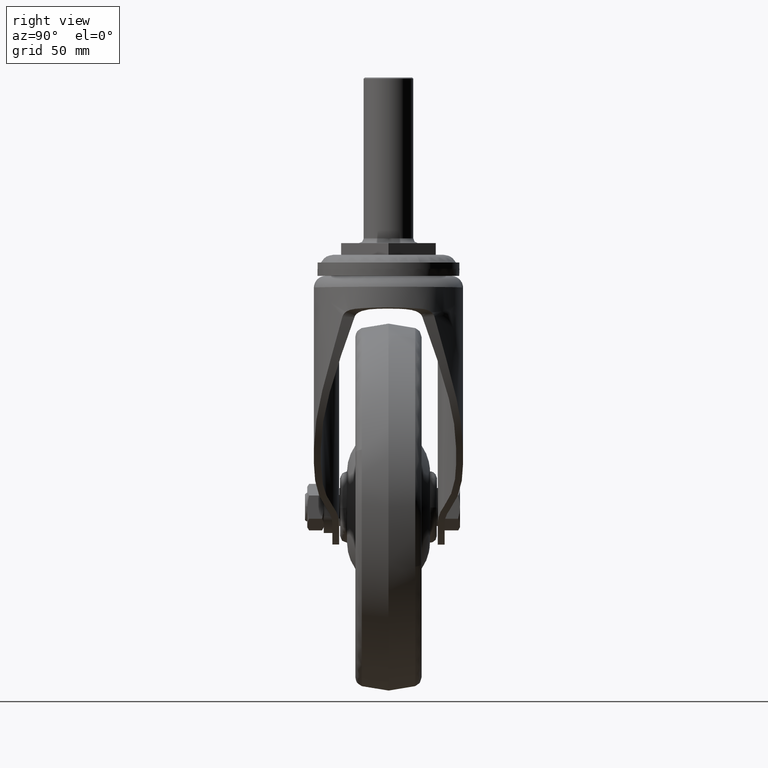
[diagram: clean part render]
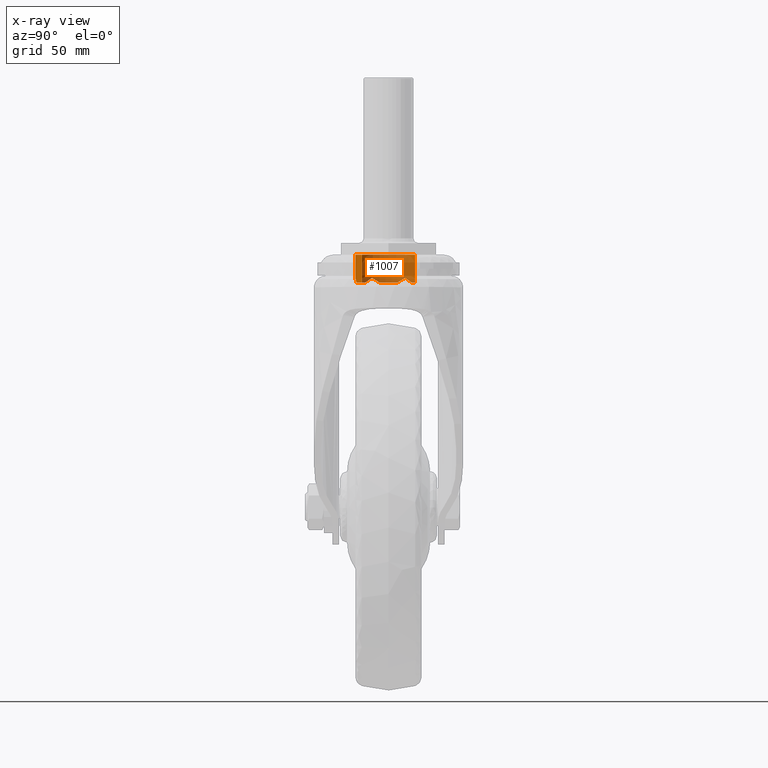
[diagram: x-ray — body ghosted, one internal face saturated and labeled with its STEP entity id]
A machine part, right view, then the same camera in x-ray: the body is ghosted and one INTERNAL B-rep face — a face not visible from any outside direction — is saturated and labeled: STEP entity #1007.
In plain terms, the highlighted face is a freeform B-spline surface patch.
Its self-contained STEP definition (entity closure, byte-faithful):
#334=CARTESIAN_POINT('',(-10.015349823234240,9.781807196112590,-11.800000000000161));
#335=VERTEX_POINT('',#334);
#347=CARTESIAN_POINT('',(-12.124318285586581,6.999420705564249,-9.800000000000148));
#348=VERTEX_POINT('',#347);
#354=CARTESIAN_POINT('',(-10.015349823234240,9.781807196112590,-11.800000000000161));
#355=CARTESIAN_POINT('',(-11.244671239966648,8.523135479416514,-10.815789616216570));
#356=CARTESIAN_POINT('',(-12.124318285586581,6.999420705564249,-9.800000000000148));
#364=(BOUNDED_CURVE()B_SPLINE_CURVE(2,(#354,#355,#356),.UNSPECIFIED.,.F.,.U.)CURVE()GEOMETRIC_REPRESENTATION_ITEM()QUASI_UNIFORM_CURVE()RATIONAL_B_SPLINE_CURVE((1.0,0.992195319500428,1.0))REPRESENTATION_ITEM(''));
#365=EDGE_CURVE('',#335,#348,#364,.T.);
#383=CARTESIAN_POINT('',(-13.479237789742999,3.781683846019150,-11.800000000000161));
#384=VERTEX_POINT('',#383);
#390=CARTESIAN_POINT('',(-12.124318285586581,6.999420705564249,-9.800000000000148));
#391=CARTESIAN_POINT('',(-13.003973201035539,5.475692299680845,-10.815798704056071));
#392=CARTESIAN_POINT('',(-13.479237789742999,3.781683846019170,-11.800000000000191));
#400=(BOUNDED_CURVE()B_SPLINE_CURVE(2,(#390,#391,#392),.UNSPECIFIED.,.F.,.U.)CURVE()GEOMETRIC_REPRESENTATION_ITEM()QUASI_UNIFORM_CURVE()RATIONAL_B_SPLINE_CURVE((1.0,0.992195181311014,1.0))REPRESENTATION_ITEM(''));
#401=EDGE_CURVE('',#348,#384,#400,.T.);
#411=CARTESIAN_POINT('',(-13.479237789742999,-3.781683846019170,-11.800000000000161));
#412=VERTEX_POINT('',#411);
#413=CARTESIAN_POINT('',(-13.479237789742990,-3.781683846019168,-11.800000000000161));
#414=CARTESIAN_POINT('',(-14.540212670839361,-1.581374E-014,-11.800000000000161));
#415=CARTESIAN_POINT('',(-13.479237789743010,3.781683846019147,-11.800000000000161));
#423=(BOUNDED_CURVE()B_SPLINE_CURVE(2,(#413,#414,#415),.UNSPECIFIED.,.F.,.U.)CURVE()GEOMETRIC_REPRESENTATION_ITEM()QUASI_UNIFORM_CURVE()RATIONAL_B_SPLINE_CURVE((1.0,0.962824844238789,1.0))REPRESENTATION_ITEM(''));
#424=EDGE_CURVE('',#412,#384,#423,.T.);
#442=CARTESIAN_POINT('',(-12.124318285586121,-6.999420705563920,-9.800000000000148));
#443=VERTEX_POINT('',#442);
#449=CARTESIAN_POINT('',(-13.479237789742999,-3.781683846019170,-11.800000000000161));
#450=CARTESIAN_POINT('',(-13.003973202495283,-5.475692293245288,-10.815798707695214));
#451=CARTESIAN_POINT('',(-12.124318285586121,-6.999420705563920,-9.800000000000148));
#459=(BOUNDED_CURVE()B_SPLINE_CURVE(2,(#449,#450,#451),.UNSPECIFIED.,.F.,.U.)CURVE()GEOMETRIC_REPRESENTATION_ITEM()QUASI_UNIFORM_CURVE()RATIONAL_B_SPLINE_CURVE((1.0,0.992195181380222,1.0))REPRESENTATION_ITEM(''));
#460=EDGE_CURVE('',#412,#443,#459,.T.);
#479=CARTESIAN_POINT('',(-10.015349823234160,-9.781807196112629,-11.800000000000161));
#480=VERTEX_POINT('',#479);
#486=CARTESIAN_POINT('',(-12.124318285586121,-6.999420705563920,-9.800000000000148));
#487=CARTESIAN_POINT('',(-11.244671242252489,-8.523135479340697,-10.815789615518794));
#488=CARTESIAN_POINT('',(-10.015349823234169,-9.781807196112622,-11.800000000000150));
#496=(BOUNDED_CURVE()B_SPLINE_CURVE(2,(#486,#487,#488),.UNSPECIFIED.,.F.,.U.)CURVE()GEOMETRIC_REPRESENTATION_ITEM()QUASI_UNIFORM_CURVE()RATIONAL_B_SPLINE_CURVE((1.0,0.992195319431596,1.0))REPRESENTATION_ITEM(''));
#497=EDGE_CURVE('',#443,#480,#496,.T.);
#507=CARTESIAN_POINT('',(-3.464101615137745,-13.564327631831860,-11.800000000000161));
#508=VERTEX_POINT('',#507);
#509=CARTESIAN_POINT('',(-3.464101615137741,-13.564327631831860,-11.800000000000161));
#510=CARTESIAN_POINT('',(-7.270439484209970,-12.592252825184595,-11.800000000000155));
#511=CARTESIAN_POINT('',(-10.015349823234160,-9.781807196112631,-11.800000000000161));
#519=(BOUNDED_CURVE()B_SPLINE_CURVE(2,(#509,#510,#511),.UNSPECIFIED.,.F.,.U.)CURVE()GEOMETRIC_REPRESENTATION_ITEM()QUASI_UNIFORM_CURVE()RATIONAL_B_SPLINE_CURVE((1.0,0.962810414805098,1.0))REPRESENTATION_ITEM(''));
#520=EDGE_CURVE('',#508,#480,#519,.T.);
#537=CARTESIAN_POINT('',(0.0,-13.999677999999561,-9.800000000000148));
#538=VERTEX_POINT('',#537);
#544=CARTESIAN_POINT('',(0.0,-13.999677999999561,-9.800000000000148));
#545=CARTESIAN_POINT('',(-1.759407112293093,-13.999678291942240,-10.815794169896717));
#546=CARTESIAN_POINT('',(-3.464101615137745,-13.564327631831860,-11.800000000000161));
#554=(BOUNDED_CURVE()B_SPLINE_CURVE(2,(#544,#545,#546),.UNSPECIFIED.,.F.,.U.)CURVE()GEOMETRIC_REPRESENTATION_ITEM()QUASI_UNIFORM_CURVE()RATIONAL_B_SPLINE_CURVE((1.0,0.992195240070578,1.0))REPRESENTATION_ITEM(''));
#555=EDGE_CURVE('',#538,#508,#554,.T.);
#574=CARTESIAN_POINT('',(3.464101615137760,-13.564327631831841,-11.800000000000161));
#575=VERTEX_POINT('',#574);
#581=CARTESIAN_POINT('',(3.464101615137760,-13.564327631831841,-11.800000000000161));
#582=CARTESIAN_POINT('',(1.759407084668356,-13.999677708057275,-10.815794153947566));
#583=CARTESIAN_POINT('',(0.0,-13.999677999999561,-9.800000000000148));
#591=(BOUNDED_CURVE()B_SPLINE_CURVE(2,(#581,#582,#583),.UNSPECIFIED.,.F.,.U.)CURVE()GEOMETRIC_REPRESENTATION_ITEM()QUASI_UNIFORM_CURVE()RATIONAL_B_SPLINE_CURVE((1.0,0.992195260761326,1.0))REPRESENTATION_ITEM(''));
#592=EDGE_CURVE('',#575,#538,#591,.T.);
#611=CARTESIAN_POINT('',(8.327327481580312,-11.253737206732460,-11.800000000000161));
#612=VERTEX_POINT('',#611);
#626=CARTESIAN_POINT('',(8.327327481580316,-11.253737206732458,-11.800000000000164));
#627=CARTESIAN_POINT('',(6.122100513485481,-12.885519324725427,-11.800000000000157));
#628=CARTESIAN_POINT('',(3.464101615137770,-13.564327631831850,-11.800000000000161));
#636=(BOUNDED_CURVE()B_SPLINE_CURVE(2,(#626,#627,#628),.UNSPECIFIED.,.F.,.U.)B_SPLINE_CURVE_WITH_KNOTS((3,3),(0.293675445178427,1.0),.UNSPECIFIED.)CURVE()GEOMETRIC_REPRESENTATION_ITEM()RATIONAL_B_SPLINE_CURVE((0.984575506361340,0.973738877574036,1.0))REPRESENTATION_ITEM(''));
#637=EDGE_CURVE('',#612,#575,#636,.T.);
#902=CARTESIAN_POINT('',(-8.327327481580333,11.253737206732501,-11.800000000000161));
#903=VERTEX_POINT('',#902);
#904=CARTESIAN_POINT('',(-10.015349823234249,9.781807196112597,-11.800000000000161));
#905=CARTESIAN_POINT('',(-9.230397041762339,10.585500884154843,-11.800000000000157));
#906=CARTESIAN_POINT('',(-8.327327481580335,11.253737206732499,-11.800000000000162));
#914=(BOUNDED_CURVE()B_SPLINE_CURVE(2,(#904,#905,#906),.UNSPECIFIED.,.F.,.U.)B_SPLINE_CURVE_WITH_KNOTS((3,3),(0.0,0.293767518354549),.UNSPECIFIED.)CURVE()GEOMETRIC_REPRESENTATION_ITEM()RATIONAL_B_SPLINE_CURVE((1.0,0.989074907848658,0.984568690115505))REPRESENTATION_ITEM(''));
#915=EDGE_CURVE('',#335,#903,#914,.T.);
#933=CARTESIAN_POINT('',(8.327327481581309,-11.253737206731721,0.295000000000004));
#934=CARTESIAN_POINT('',(-2.926409725150437,-19.581064688313024,0.295000000000004));
#935=CARTESIAN_POINT('',(-11.253737206731749,-8.327327481581280,0.295000000000004));
#936=CARTESIAN_POINT('',(-19.581064688313052,2.926409725150466,0.295000000000004));
#937=CARTESIAN_POINT('',(-8.327327481581309,11.253737206731770,0.295000000000004));
#938=CARTESIAN_POINT('',(8.327327481581309,-11.253737206731721,-12.102375000000171));
#939=CARTESIAN_POINT('',(-2.926409725150437,-19.581064688313024,-12.102375000000166));
#940=CARTESIAN_POINT('',(-11.253737206731749,-8.327327481581280,-12.102375000000171));
#941=CARTESIAN_POINT('',(-19.581064688313052,2.926409725150466,-12.102375000000166));
#942=CARTESIAN_POINT('',(-8.327327481581309,11.253737206731770,-12.102375000000171));
#950=(BOUNDED_SURFACE()B_SPLINE_SURFACE(2,1,((#933,#938),(#934,#939),(#935,#940),(#936,#941),(#937,#942)),.UNSPECIFIED.,.F.,.F.,.U.)B_SPLINE_SURFACE_WITH_KNOTS((3,2,3),(2,2),(0.0,23.195425985824620,46.390851971649241),(0.0,12.397375000000171),.UNSPECIFIED.)GEOMETRIC_REPRESENTATION_ITEM()RATIONAL_B_SPLINE_SURFACE(((1.0,1.0),(0.707106781186548,0.707106781186548),(1.0,1.0),(0.707106781186548,0.707106781186548),(1.0,1.0)))REPRESENTATION_ITEM('')SURFACE());
#951=ORIENTED_EDGE('',*,*,#637,.F.);
#952=CARTESIAN_POINT('',(8.327319146358533,-11.253743374462569,-3.053113E-016));
#953=VERTEX_POINT('',#952);
#954=CARTESIAN_POINT('',(8.327319146358533,-11.253743374462569,-3.053113E-016));
#955=CARTESIAN_POINT('',(8.327327481580312,-11.253737206732460,-11.800000000000161));
#956=QUASI_UNIFORM_CURVE('',1,(#954,#955),.UNSPECIFIED.,.F.,.U.);
#957=EDGE_CURVE('',#953,#612,#956,.T.);
#958=ORIENTED_EDGE('',*,*,#957,.F.);
#959=CARTESIAN_POINT('',(-13.999677999999779,2.842171E-014,0.0));
#960=VERTEX_POINT('',#959);
#961=CARTESIAN_POINT('',(8.327319146358533,-11.253743374462571,-3.053113E-016));
#962=CARTESIAN_POINT('',(4.616395732029764,-13.999677999996917,-2.799388E-016));
#963=CARTESIAN_POINT('',(-1.717913E-012,-13.999677999997431,-2.296005E-016));
#964=CARTESIAN_POINT('',(-13.999678000000356,-13.999677999998974,-7.694486E-017));
#965=CARTESIAN_POINT('',(-13.999677999999779,2.842171E-014,0.0));
#973=(BOUNDED_CURVE()B_SPLINE_CURVE(2,(#961,#962,#963,#964,#965),.UNSPECIFIED.,.F.,.U.)B_SPLINE_CURVE_WITH_KNOTS((3,2,3),(0.147425994664342,0.250000000000000,0.500000000000000),.UNSPECIFIED.)CURVE()GEOMETRIC_REPRESENTATION_ITEM()RATIONAL_B_SPLINE_CURVE((0.858267099117920,0.879827077642603,1.0,0.707106781186547,1.0))REPRESENTATION_ITEM(''));
#974=EDGE_CURVE('',#953,#960,#973,.T.);
#975=ORIENTED_EDGE('',*,*,#974,.T.);
#976=CARTESIAN_POINT('',(-8.327319146358532,11.253743374462630,-3.053113E-016));
#977=VERTEX_POINT('',#976);
#978=CARTESIAN_POINT('',(-13.999677999999779,2.842171E-014,0.0));
#979=CARTESIAN_POINT('',(-13.999677999998635,7.056425120867538,-1.526557E-016));
#980=CARTESIAN_POINT('',(-8.327319146358532,11.253743374462630,-3.053113E-016));
#988=(BOUNDED_CURVE()B_SPLINE_CURVE(2,(#978,#979,#980),.UNSPECIFIED.,.F.,.U.)B_SPLINE_CURVE_WITH_KNOTS((3,3),(0.500000000000000,0.647425994664342),.UNSPECIFIED.)CURVE()GEOMETRIC_REPRESENTATION_ITEM()RATIONAL_B_SPLINE_CURVE((1.0,0.827279703543944,0.858267099117920))REPRESENTATION_ITEM(''));
#989=EDGE_CURVE('',#960,#977,#988,.T.);
#990=ORIENTED_EDGE('',*,*,#989,.T.);
#991=CARTESIAN_POINT('',(-8.327319146358532,11.253743374462630,-3.053113E-016));
#992=CARTESIAN_POINT('',(-8.327327481580333,11.253737206732501,-11.800000000000161));
#993=QUASI_UNIFORM_CURVE('',1,(#991,#992),.UNSPECIFIED.,.F.,.U.);
#994=EDGE_CURVE('',#977,#903,#993,.T.);
#995=ORIENTED_EDGE('',*,*,#994,.T.);
#996=ORIENTED_EDGE('',*,*,#915,.F.);
#997=ORIENTED_EDGE('',*,*,#365,.T.);
#998=ORIENTED_EDGE('',*,*,#401,.T.);
#999=ORIENTED_EDGE('',*,*,#424,.F.);
#1000=ORIENTED_EDGE('',*,*,#460,.T.);
#1001=ORIENTED_EDGE('',*,*,#497,.T.);
#1002=ORIENTED_EDGE('',*,*,#520,.F.);
#1003=ORIENTED_EDGE('',*,*,#555,.F.);
#1004=ORIENTED_EDGE('',*,*,#592,.F.);
#1005=EDGE_LOOP('',(#951,#958,#975,#990,#995,#996,#997,#998,#999,#1000,#1001,#1002,#1003,#1004));
#1006=FACE_OUTER_BOUND('',#1005,.T.);
#1007=ADVANCED_FACE('',(#1006),#950,.T.);